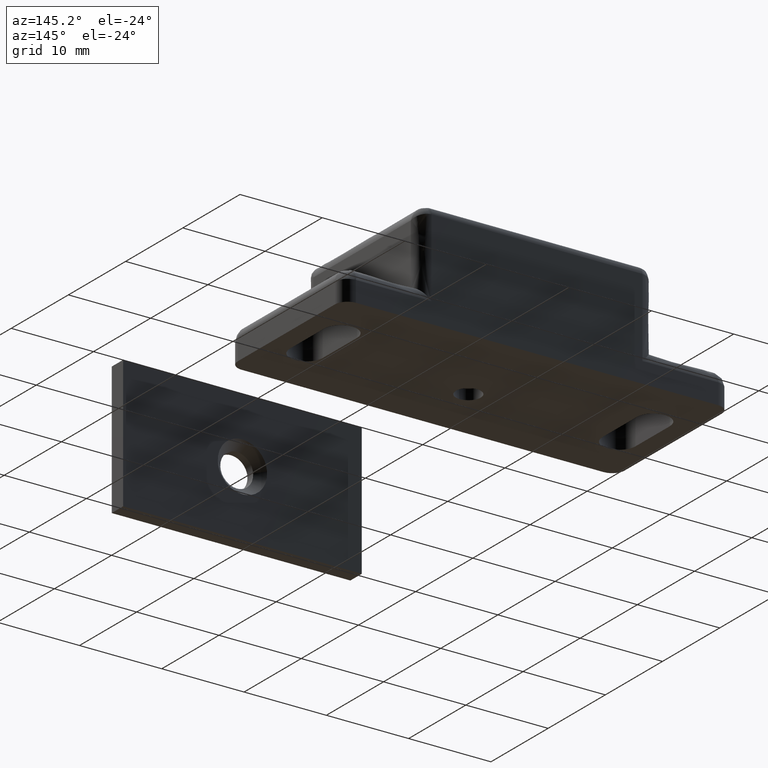
[diagram: clean part render]
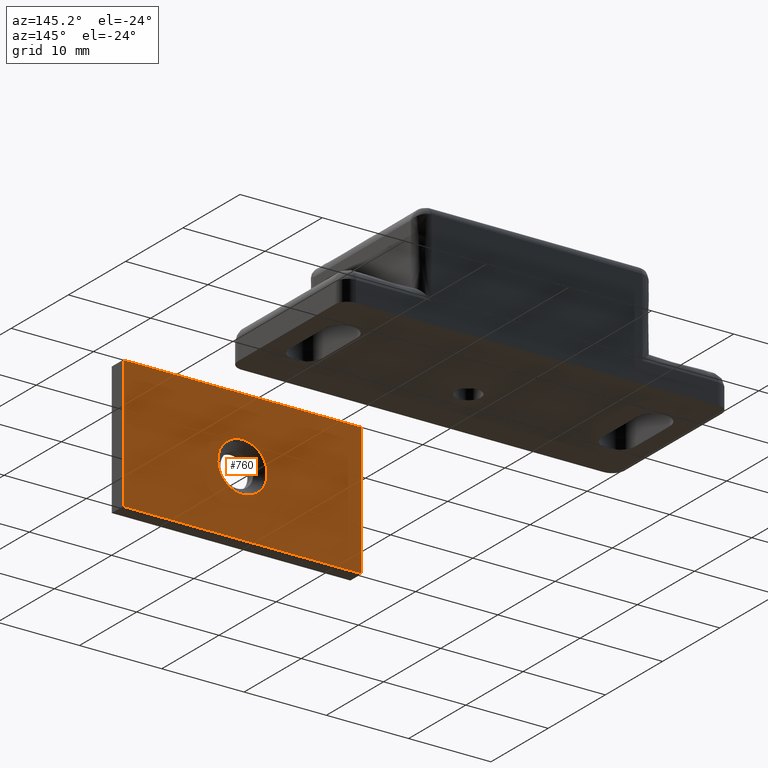
[diagram: same view with one face highlighted and labeled with its STEP entity id]
A machine part, auxiliary view. The second image highlights one B-rep face of the part: STEP entity #760.
In plain terms, the highlighted face is a freeform B-spline surface patch.
Its self-contained STEP definition (entity closure, byte-faithful):
#418=CARTESIAN_POINT('',(2.990752001203278,-51.499999999990109,6.264637712739882));
#419=VERTEX_POINT('',#418);
#425=CARTESIAN_POINT('',(0.0,-51.500000000000000,3.500014999999999));
#426=VERTEX_POINT('',#425);
#427=CARTESIAN_POINT('',(0.0,-51.500000000000000,3.500014999999999));
#428=CARTESIAN_POINT('',(2.773171474909041,-51.499999999995048,3.500014999999612));
#429=CARTESIAN_POINT('',(2.990752001203278,-51.499999999990109,6.264637712739882));
#437=(BOUNDED_CURVE()B_SPLINE_CURVE(2,(#427,#428,#429),.UNSPECIFIED.,.F.,.U.)B_SPLINE_CURVE_WITH_KNOTS((3,3),(0.0,0.236331300628422),.UNSPECIFIED.)CURVE()GEOMETRIC_REPRESENTATION_ITEM()RATIONAL_B_SPLINE_CURVE((1.0,0.723120658610288,0.969723356162747))REPRESENTATION_ITEM(''));
#438=EDGE_CURVE('',#426,#419,#437,.T.);
#440=CARTESIAN_POINT('',(-2.990752001203278,-51.499999999990109,6.735392287260116));
#441=VERTEX_POINT('',#440);
#442=CARTESIAN_POINT('',(-2.990752001203278,-51.499999999990109,6.735392287260116));
#443=CARTESIAN_POINT('',(-3.000000000009680,-51.499999999990294,6.617885321061850));
#444=CARTESIAN_POINT('',(-3.000000000009487,-51.499999999990493,6.500015000000747));
#445=CARTESIAN_POINT('',(-3.000000000004557,-51.499999999995431,3.500015000000359));
#446=CARTESIAN_POINT('',(0.0,-51.500000000000000,3.500014999999999));
#454=(BOUNDED_CURVE()B_SPLINE_CURVE(2,(#442,#443,#444,#445,#446),.UNSPECIFIED.,.F.,.U.)B_SPLINE_CURVE_WITH_KNOTS((3,2,3),(0.736331300628422,0.750000000000000,1.0),.UNSPECIFIED.)CURVE()GEOMETRIC_REPRESENTATION_ITEM()RATIONAL_B_SPLINE_CURVE((0.969723356162748,0.983986122576260,1.0,0.707106781186548,1.0))REPRESENTATION_ITEM(''));
#455=EDGE_CURVE('',#441,#426,#454,.T.);
#561=CARTESIAN_POINT('',(0.0,-51.500000000000000,9.500015000000001));
#562=VERTEX_POINT('',#561);
#563=CARTESIAN_POINT('',(0.0,-51.500000000000000,9.500015000000001));
#564=CARTESIAN_POINT('',(-2.773171474909043,-51.499999999995062,9.500015000000390));
#565=CARTESIAN_POINT('',(-2.990752001203278,-51.499999999990109,6.735392287260116));
#573=(BOUNDED_CURVE()B_SPLINE_CURVE(2,(#563,#564,#565),.UNSPECIFIED.,.F.,.U.)B_SPLINE_CURVE_WITH_KNOTS((3,3),(0.500000000000000,0.736331300628422),.UNSPECIFIED.)CURVE()GEOMETRIC_REPRESENTATION_ITEM()RATIONAL_B_SPLINE_CURVE((1.0,0.723120658610287,0.969723356162748))REPRESENTATION_ITEM(''));
#574=EDGE_CURVE('',#562,#441,#573,.T.);
#576=CARTESIAN_POINT('',(2.990752001203278,-51.499999999990109,6.264637712739882));
#577=CARTESIAN_POINT('',(3.000000000009681,-51.499999999990287,6.382144678938151));
#578=CARTESIAN_POINT('',(3.000000000009488,-51.499999999990479,6.500014999999253));
#579=CARTESIAN_POINT('',(3.000000000004557,-51.499999999995431,9.500014999999642));
#580=CARTESIAN_POINT('',(0.0,-51.500000000000000,9.500015000000001));
#588=(BOUNDED_CURVE()B_SPLINE_CURVE(2,(#576,#577,#578,#579,#580),.UNSPECIFIED.,.F.,.U.)B_SPLINE_CURVE_WITH_KNOTS((3,2,3),(0.236331300628422,0.250000000000000,0.500000000000000),.UNSPECIFIED.)CURVE()GEOMETRIC_REPRESENTATION_ITEM()RATIONAL_B_SPLINE_CURVE((0.969723356162747,0.983986122576260,1.0,0.707106781186548,1.0))REPRESENTATION_ITEM(''));
#589=EDGE_CURVE('',#419,#562,#588,.T.);
#719=CARTESIAN_POINT('',(-15.948549943792379,-51.500000000000000,15.299214968988890));
#720=CARTESIAN_POINT('',(15.948550721632991,-51.500000000000000,15.299214968988890));
#721=CARTESIAN_POINT('',(-15.948549943792379,-51.500000000000000,-2.299185398142338));
#722=CARTESIAN_POINT('',(15.948550721632991,-51.500000000000000,-2.299185398142338));
#723=B_SPLINE_SURFACE_WITH_KNOTS('',1,1,((#719,#721),(#720,#722)),.UNSPECIFIED.,.F.,.F.,.U.,(2,2),(2,2),(0.0,31.897100665425370),(0.0,17.598400367131230),.UNSPECIFIED.);
#724=CARTESIAN_POINT('',(-14.500000000000000,-51.500000000000000,-1.499985000000000));
#725=VERTEX_POINT('',#724);
#726=CARTESIAN_POINT('',(-14.500000000000000,-51.500000000000000,14.500014999999999));
#727=VERTEX_POINT('',#726);
#728=CARTESIAN_POINT('',(-14.500000000000000,-51.500000000000000,-1.499985000000000));
#729=CARTESIAN_POINT('',(-14.500000000000000,-51.500000000000000,14.500014999999999));
#730=QUASI_UNIFORM_CURVE('',1,(#728,#729),.UNSPECIFIED.,.F.,.U.);
#731=EDGE_CURVE('',#725,#727,#730,.T.);
#732=ORIENTED_EDGE('',*,*,#731,.T.);
#733=CARTESIAN_POINT('',(14.500000000000000,-51.500000000000000,14.500014999999999));
#734=VERTEX_POINT('',#733);
#735=CARTESIAN_POINT('',(-14.500000000000000,-51.500000000000000,14.500014999999999));
#736=CARTESIAN_POINT('',(14.500000000000000,-51.500000000000000,14.500014999999999));
#737=QUASI_UNIFORM_CURVE('',1,(#735,#736),.UNSPECIFIED.,.F.,.U.);
#738=EDGE_CURVE('',#727,#734,#737,.T.);
#739=ORIENTED_EDGE('',*,*,#738,.T.);
#740=CARTESIAN_POINT('',(14.500000000000000,-51.500000000000000,-1.499985000000000));
#741=VERTEX_POINT('',#740);
#742=CARTESIAN_POINT('',(14.500000000000000,-51.500000000000000,14.500014999999999));
#743=CARTESIAN_POINT('',(14.500000000000000,-51.500000000000000,-1.499985000000000));
#744=QUASI_UNIFORM_CURVE('',1,(#742,#743),.UNSPECIFIED.,.F.,.U.);
#745=EDGE_CURVE('',#734,#741,#744,.T.);
#746=ORIENTED_EDGE('',*,*,#745,.T.);
#747=CARTESIAN_POINT('',(14.500000000000000,-51.500000000000000,-1.499985000000000));
#748=CARTESIAN_POINT('',(-14.500000000000000,-51.500000000000000,-1.499985000000000));
#749=QUASI_UNIFORM_CURVE('',1,(#747,#748),.UNSPECIFIED.,.F.,.U.);
#750=EDGE_CURVE('',#741,#725,#749,.T.);
#751=ORIENTED_EDGE('',*,*,#750,.T.);
#752=EDGE_LOOP('',(#732,#739,#746,#751));
#753=FACE_OUTER_BOUND('',#752,.T.);
#754=ORIENTED_EDGE('',*,*,#574,.T.);
#755=ORIENTED_EDGE('',*,*,#455,.T.);
#756=ORIENTED_EDGE('',*,*,#438,.T.);
#757=ORIENTED_EDGE('',*,*,#589,.T.);
#758=EDGE_LOOP('',(#754,#755,#756,#757));
#759=FACE_BOUND('',#758,.T.);
#760=ADVANCED_FACE('',(#753,#759),#723,.T.);